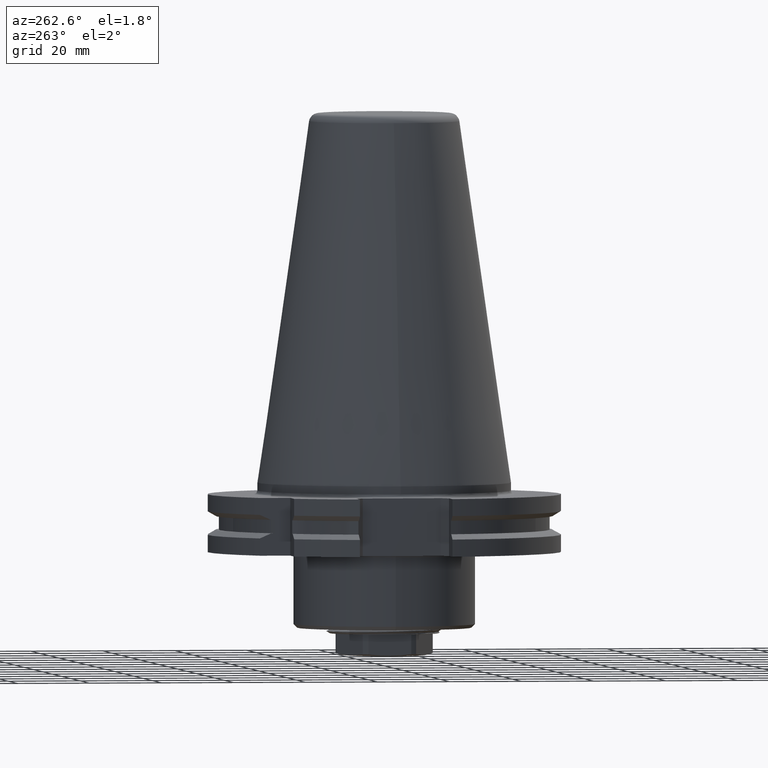
[diagram: clean part render]
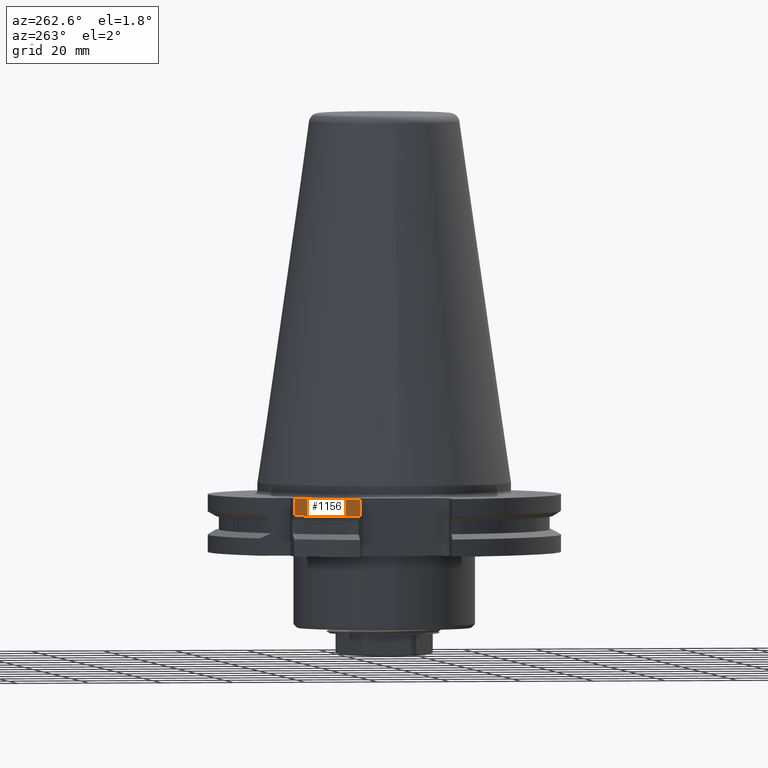
[diagram: same view with one face highlighted and labeled with its STEP entity id]
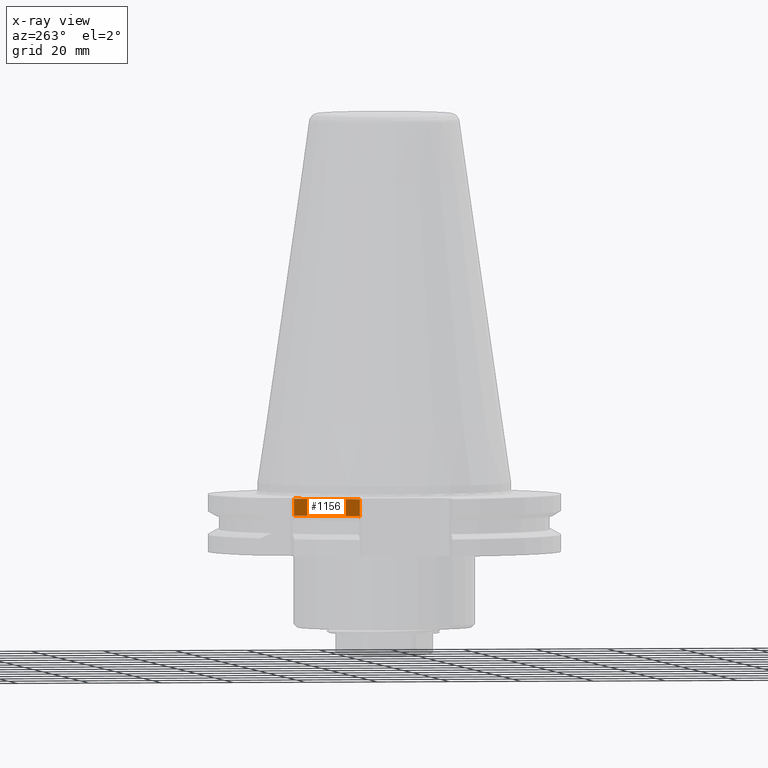
[diagram: x-ray of the same camera — body ghosted, the highlighted face saturated]
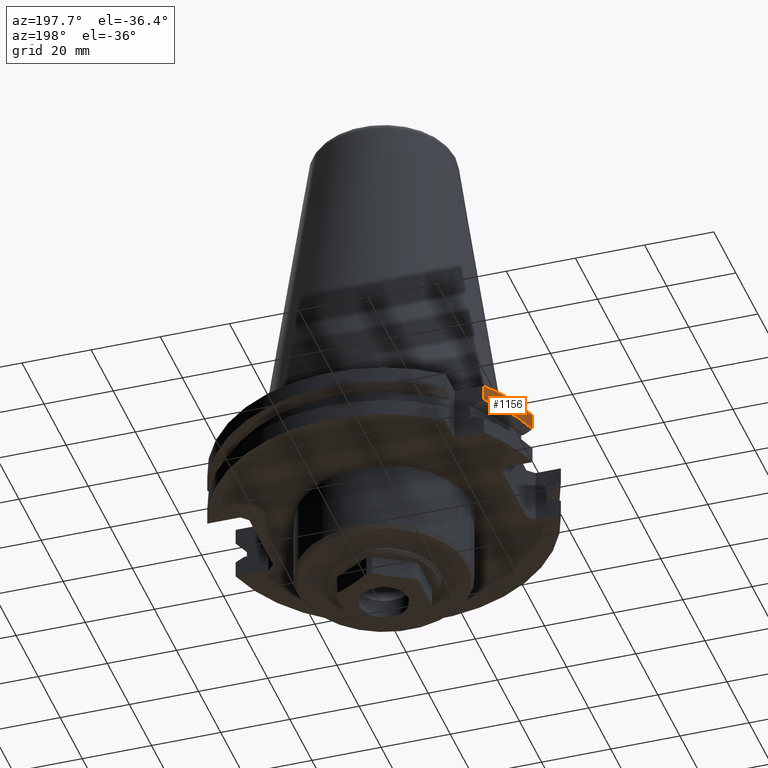
[diagram: same view with one face highlighted and labeled with its STEP entity id]
A machine part, auxiliary view. The second image highlights one B-rep face of the part: STEP entity #1156.
The next image is the same camera in x-ray: the body ghosted, the highlighted face saturated — about 0% of this face is hidden behind the body in this view.
A second angle (auxiliary view) of the same face is appended — the face is thin or edge-on in the first view.
In plain terms, the highlighted cylindrical surface (partial cylindrical patch) has radius 48.75 mm, axis along (0, 0, -1).
Its self-contained STEP definition (entity closure, byte-faithful):
#56=LINE('',#1829,#138);
#57=LINE('',#1833,#139);
#138=VECTOR('',#1455,1000.);
#139=VECTOR('',#1458,1000.);
#221=CYLINDRICAL_SURFACE('',#1260,48.75);
#327=ORIENTED_EDGE('',*,*,#644,.F.);
#328=ORIENTED_EDGE('',*,*,#645,.F.);
#329=ORIENTED_EDGE('',*,*,#646,.T.);
#330=ORIENTED_EDGE('',*,*,#631,.T.);
#631=EDGE_CURVE('',#789,#787,#889,.T.);
#644=EDGE_CURVE('',#798,#787,#56,.F.);
#645=EDGE_CURVE('',#799,#798,#890,.T.);
#646=EDGE_CURVE('',#799,#789,#57,.F.);
#787=VERTEX_POINT('',#1804);
#789=VERTEX_POINT('',#1807);
#798=VERTEX_POINT('',#1830);
#799=VERTEX_POINT('',#1832);
#889=CIRCLE('',#1259,48.75);
#890=CIRCLE('',#1261,48.75);
#948=EDGE_LOOP('',(#327,#328,#329,#330));
#1038=FACE_BOUND('',#948,.T.);
#1156=ADVANCED_FACE('',(#1038),#221,.T.);
#1259=AXIS2_PLACEMENT_3D('',#1806,#1439,#1440);
#1260=AXIS2_PLACEMENT_3D('',#1828,#1453,#1454);
#1261=AXIS2_PLACEMENT_3D('',#1831,#1456,#1457);
#1439=DIRECTION('',(0.,0.,-1.));
#1440=DIRECTION('',(-1.,0.,0.));
#1453=DIRECTION('',(0.,0.,-1.));
#1454=DIRECTION('',(-1.,0.,0.));
#1455=DIRECTION('',(0.,0.,-1.));
#1456=DIRECTION('',(0.,0.,-1.));
#1457=DIRECTION('',(-1.,0.,0.));
#1458=DIRECTION('',(0.,0.,-1.));
#1804=CARTESIAN_POINT('',(-38.4260653723485,30.,-3.2));
#1806=CARTESIAN_POINT('',(0.,0.,-3.2));
#1807=CARTESIAN_POINT('',(-47.025950282796,12.85,-3.2));
#1828=CARTESIAN_POINT('',(0.,0.,-60.));
#1829=CARTESIAN_POINT('',(-38.4260653723485,30.,-60.));
#1830=CARTESIAN_POINT('',(-38.4260653723485,30.,-7.85240473580835));
#1831=CARTESIAN_POINT('',(0.,0.,-7.85240473580835));
#1832=CARTESIAN_POINT('',(-47.025950282796,12.85,-7.85240473580835));
#1833=CARTESIAN_POINT('',(-47.025950282796,12.85,-60.));